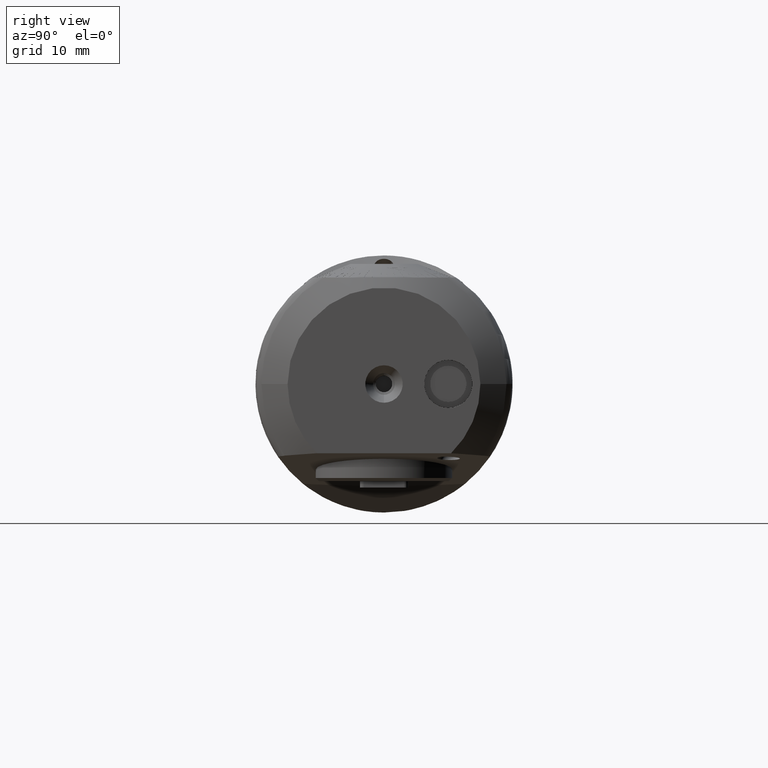
[diagram: clean part render]
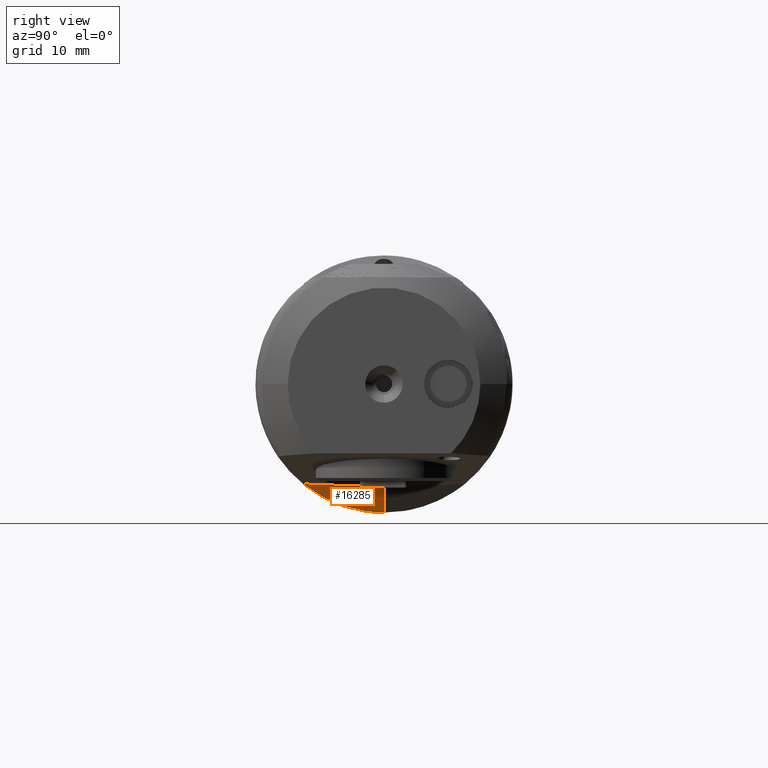
[diagram: same view with one face highlighted and labeled with its STEP entity id]
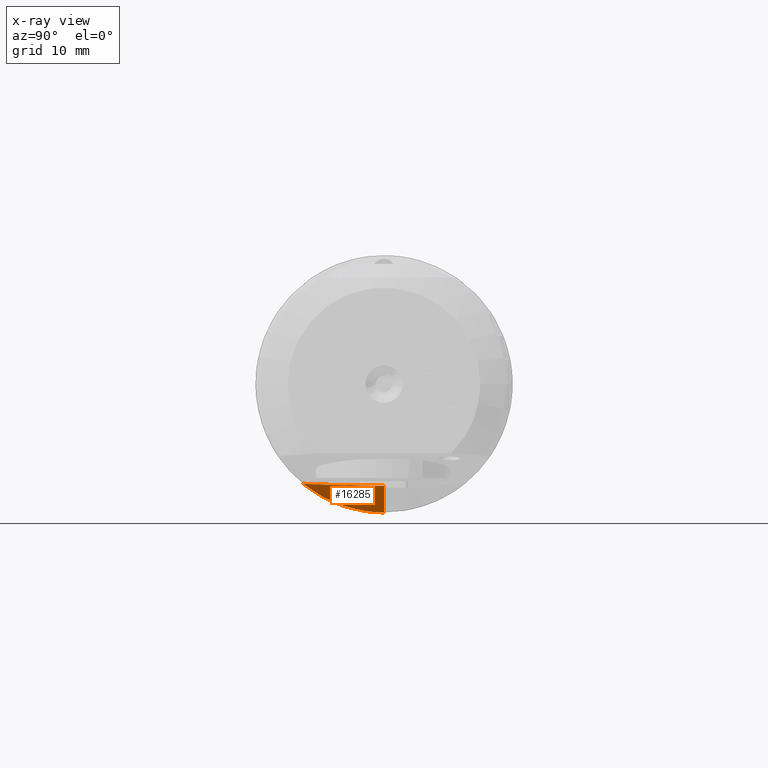
[diagram: x-ray of the same camera — body ghosted, the highlighted face saturated]
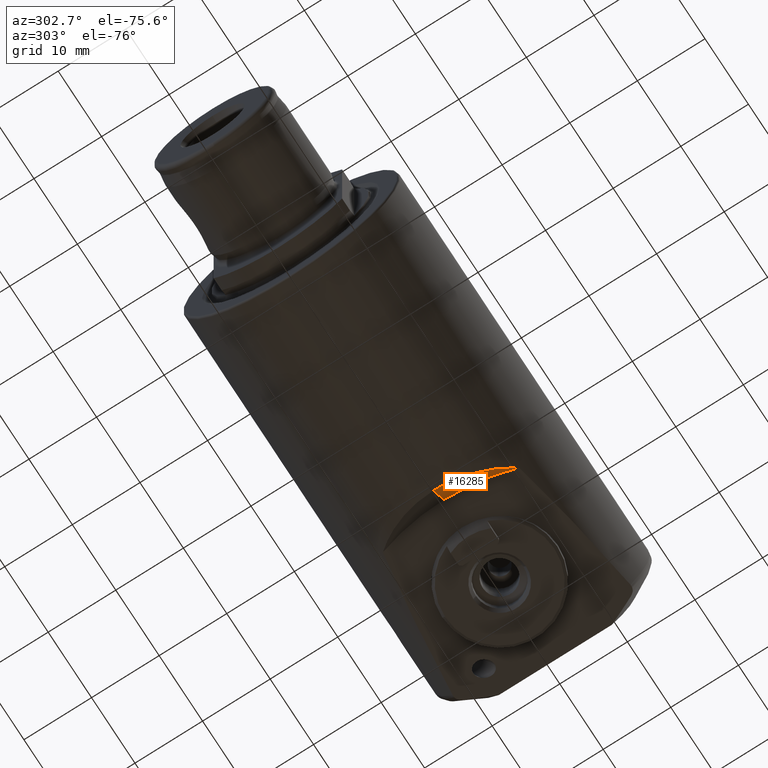
[diagram: same view with one face highlighted and labeled with its STEP entity id]
A machine part, right view. The second image highlights one B-rep face of the part: STEP entity #16285.
The next image is the same camera in x-ray: the body ghosted, the highlighted face saturated — about 0% of this face is hidden behind the body in this view.
A second angle (auxiliary view) of the same face is appended — the face is thin or edge-on in the first view.
In plain terms, the highlighted conical surface has half-angle 45 deg.
Its self-contained STEP definition (entity closure, byte-faithful):
#353 = AXIS2_PLACEMENT_3D ( 'NONE', #9274, #9272, #9270 ) ;
#690 = DIRECTION ( 'NONE',  ( -0.5877852522924779100, 0.0000000000000000000, -0.8090169943749440100 ) ) ;
#695 = CARTESIAN_POINT ( 'NONE',  ( 48.16166285240655000, 0.0000000000000000000, -19.75939620312321000 ) ) ;
#4913 = B_SPLINE_CURVE_WITH_KNOTS ( 'NONE', 3,
 ( #18595, #18592, #18597, #18598, #18599, #18600, #18601, #18602, #18603, #18604, #18605, #18606, #18607, #18608, #18609, #18610 ),
 .UNSPECIFIED., .F., .F.,
 ( 4, 2, 2, 2, 2, 2, 2, 4 ),
 ( 0.01558161083220476400, 0.01703773605267509500, 0.01849386127314542700, 0.02140611171408610100, 0.02286223693455643700, 0.02431836215502677200, 0.02577448737549710800, 0.02723061259596744300 ),
 .UNSPECIFIED. ) ;
#6222 = VERTEX_POINT ( 'NONE', #11575 ) ;
#6497 = EDGE_CURVE ( 'NONE', #6222, #12086, #4913, .T. ) ;
#6507 = EDGE_CURVE ( 'NONE', #12105, #6222, #13152, .T. ) ;
#9270 = DIRECTION ( 'NONE',  ( -0.9876883405951387700, 0.0000000000000000000, -0.1564344650402238700 ) ) ;
#9272 = DIRECTION ( 'NONE',  ( 0.1564344650402239300, 0.0000000000000000000, -0.9876883405951388800 ) ) ;
#9274 = CARTESIAN_POINT ( 'NONE',  ( 85.37917133056662100, 0.0000000000000000000, -13.86472195253641400 ) ) ;
#10223 = FACE_OUTER_BOUND ( 'NONE', #16595, .T. ) ;
#10237 = CONICAL_SURFACE ( 'NONE', #353, 37.68142940285635900, 0.7853981633974471700 ) ;
#11062 = EDGE_CURVE ( 'NONE', #12105, #12086, #13424, .T. ) ;
#11575 = CARTESIAN_POINT ( 'NONE',  ( 54.93487726142884500, -10.07676873988002200, -12.42814273183956800 ) ) ;
#12086 = VERTEX_POINT ( 'NONE', #17767 ) ;
#12105 = VERTEX_POINT ( 'NONE', #17799 ) ;
#13152 = CIRCLE ( 'NONE', #21928, 31.50000000000001100 ) ;
#13424 = LINE ( 'NONE', #695, #13429 ) ;
#13429 = VECTOR ( 'NONE', #690, 999.9999999999998900 ) ;
#16285 = ADVANCED_FACE ( 'NONE', ( #10223 ), #10237, .F. ) ;
#16383 = ORIENTED_EDGE ( 'NONE', *, *, #11062, .F. ) ;
#16384 = ORIENTED_EDGE ( 'NONE', *, *, #6507, .T. ) ;
#16385 = ORIENTED_EDGE ( 'NONE', *, *, #6497, .T. ) ;
#16595 = EDGE_LOOP ( 'NONE', ( #16383, #16384, #16385 ) ) ;
#17767 = CARTESIAN_POINT ( 'NONE',  ( 50.89302407359748800, 1.959483619477471300E-015, -16.00000000000000000 ) ) ;
#17799 = CARTESIAN_POINT ( 'NONE',  ( 53.29999999999998300, 0.0000000000000000000, -12.68708185189027700 ) ) ;
#18592 = CARTESIAN_POINT ( 'NONE',  ( 54.65025896674590900, -9.766071767550801800, -12.68005660231047400 ) ) ;
#18595 = CARTESIAN_POINT ( 'NONE',  ( 54.93487726142884500, -10.07676873988002200, -12.42814273183956800 ) ) ;
#18597 = CARTESIAN_POINT ( 'NONE',  ( 54.37353690171592300, -9.440381219351554200, -12.92488682156270500 ) ) ;
#18598 = CARTESIAN_POINT ( 'NONE',  ( 53.83798171165893400, -8.755099975313099100, -13.39857161562991200 ) ) ;
#18599 = CARTESIAN_POINT ( 'NONE',  ( 53.58191912127527700, -8.398948159199910900, -13.62497568966095200 ) ) ;
#18600 = CARTESIAN_POINT ( 'NONE',  ( 52.85471611166287400, -7.291053780680863700, -14.26778559084545100 ) ) ;
#18601 = CARTESIAN_POINT ( 'NONE',  ( 52.42262473263827600, -6.498819071379356800, -14.64950272205667600 ) ) ;
#18602 = CARTESIAN_POINT ( 'NONE',  ( 51.87307826947778700, -5.210310775941129800, -15.13483750985220400 ) ) ;
#18603 = CARTESIAN_POINT ( 'NONE',  ( 51.70686744011860000, -4.763848900507719400, -15.28159822611319800 ) ) ;
#18604 = CARTESIAN_POINT ( 'NONE',  ( 51.41963293079041400, -3.857375749154106100, -15.53519079448503600 ) ) ;
#18605 = CARTESIAN_POINT ( 'NONE',  ( 51.29736363888872600, -3.394691148358758100, -15.64312276920583000 ) ) ;
#18606 = CARTESIAN_POINT ( 'NONE',  ( 51.09839364275234900, -2.449161034592001000, -15.81874926129835800 ) ) ;
#18607 = CARTESIAN_POINT ( 'NONE',  ( 51.02150582023245600, -1.964627450499383900, -15.88660892466743700 ) ) ;
#18608 = CARTESIAN_POINT ( 'NONE',  ( 50.91845404630305400, -0.9806839439557536500, -15.97755810963133500 ) ) ;
#18609 = CARTESIAN_POINT ( 'NONE',  ( 50.89302407359748800, -0.4898080544414735700, -16.00000000000000400 ) ) ;
#18610 = CARTESIAN_POINT ( 'NONE',  ( 50.89302407359748800, 1.959483619477471300E-015, -16.00000000000000000 ) ) ;
#18686 = CARTESIAN_POINT ( 'NONE',  ( 84.41218272874687000, 0.0000000000000000000, -7.759396203123221100 ) ) ;
#18687 = DIRECTION ( 'NONE',  ( -0.1564344650402239300, -0.0000000000000000000, 0.9876883405951388800 ) ) ;
#18688 = DIRECTION ( 'NONE',  ( 0.9876883405951388800, 0.0000000000000000000, 0.1564344650402239300 ) ) ;
#21928 = AXIS2_PLACEMENT_3D ( 'NONE', #18686, #18687, #18688 ) ;